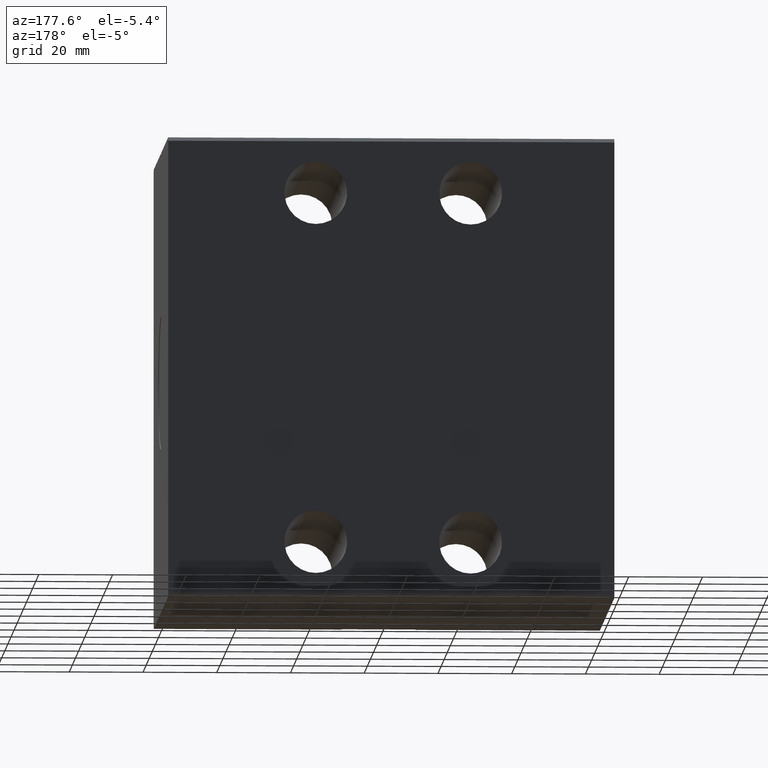
[diagram: clean part render]
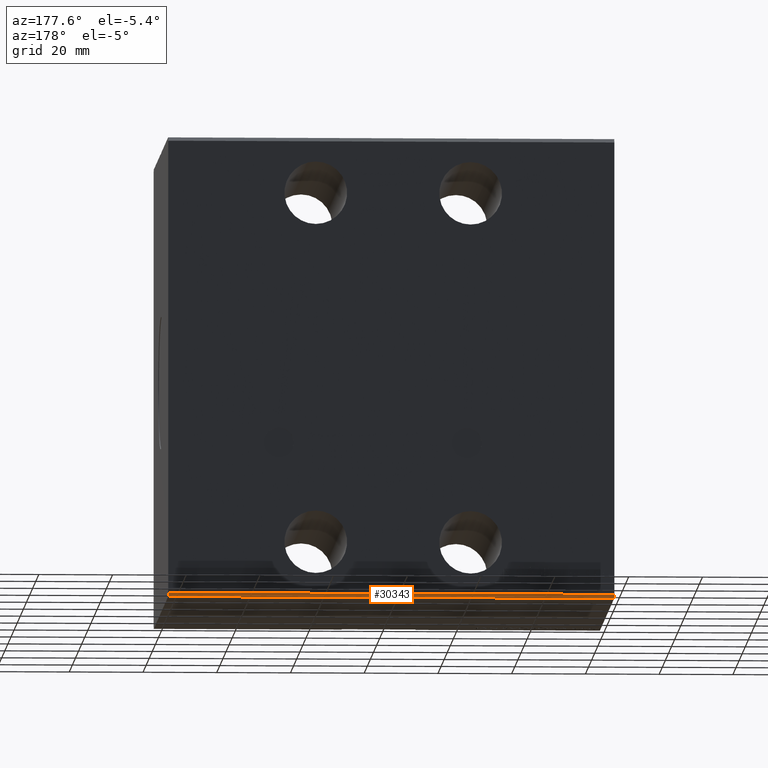
[diagram: same view with one face highlighted and labeled with its STEP entity id]
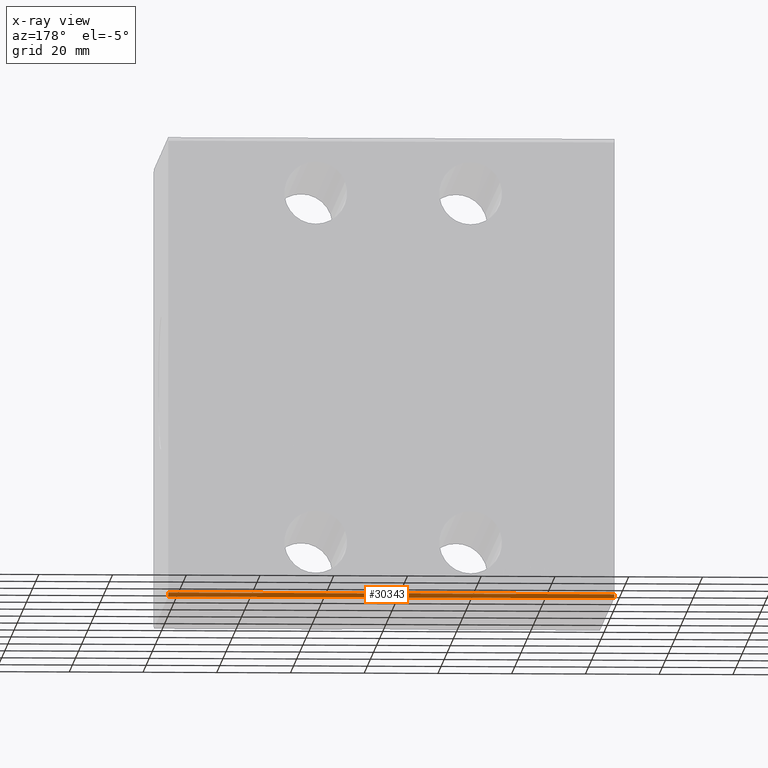
[diagram: x-ray of the same camera — body ghosted, the highlighted face saturated]
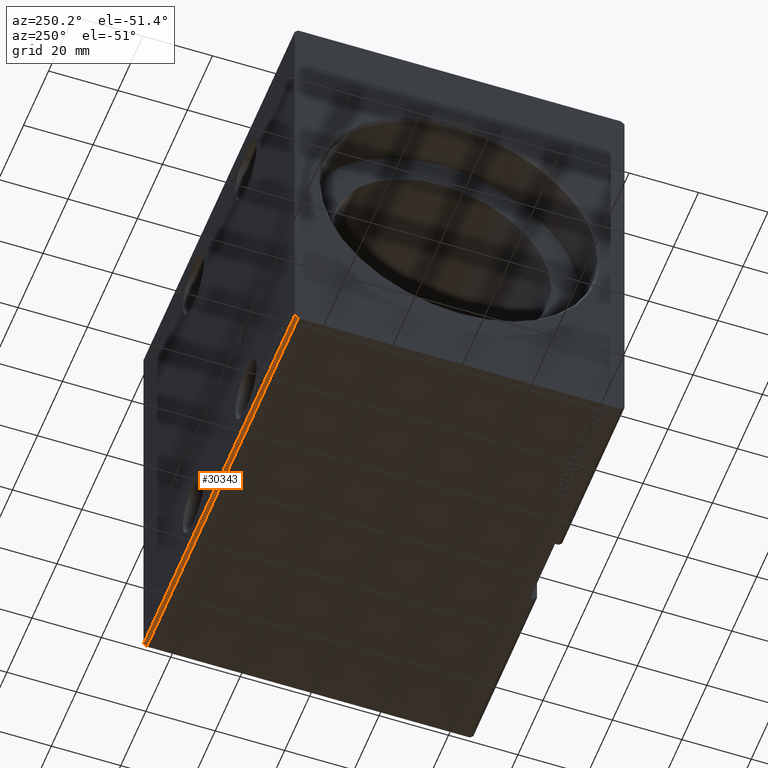
[diagram: same view with one face highlighted and labeled with its STEP entity id]
A machine part, auxiliary view. The second image highlights one B-rep face of the part: STEP entity #30343.
The next image is the same camera in x-ray: the body ghosted, the highlighted face saturated — about 0% of this face is hidden behind the body in this view.
A second angle (auxiliary view) of the same face is appended — the face is thin or edge-on in the first view.
In plain terms, the highlighted planar face has unit normal (0, -0.7071, 0.7071).
Its self-contained STEP definition (entity closure, byte-faithful):
#1283 = CARTESIAN_POINT ( 'NONE',  ( 121.0000000000000000, 47.50000000000001421, -61.50000000000001421 ) ) ;
#1706 = DIRECTION ( 'NONE',  ( 0.000000000000000000, 0.7071067811865574537, 0.7071067811865376918 ) ) ;
#1851 = EDGE_CURVE ( 'NONE', #39531, #21292, #5405, .T. ) ;
#2022 = LINE ( 'NONE', #34528, #27684 ) ;
#2207 = CARTESIAN_POINT ( 'NONE',  ( 0.000000000000000000, 46.50000000000000000, -62.50000000000000000 ) ) ;
#4252 = DIRECTION ( 'NONE',  ( 0.000000000000000000, -0.7071067811865378028, 0.7071067811865573427 ) ) ;
#5405 = LINE ( 'NONE', #2207, #7155 ) ;
#6827 = CARTESIAN_POINT ( 'NONE',  ( 121.0000000000000000, 46.50000000000000000, -62.50000000000000000 ) ) ;
#7155 = VECTOR ( 'NONE', #15183, 999.9999999999998863 ) ;
#10497 = ORIENTED_EDGE ( 'NONE', *, *, #33386, .F. ) ;
#10604 = VECTOR ( 'NONE', #1706, 999.9999999999998863 ) ;
#11709 = ORIENTED_EDGE ( 'NONE', *, *, #20913, .T. ) ;
#12242 = VECTOR ( 'NONE', #37224, 1000.000000000000000 ) ;
#15183 = DIRECTION ( 'NONE',  ( 0.000000000000000000, 0.7071067811865574537, 0.7071067811865376918 ) ) ;
#20913 = EDGE_CURVE ( 'NONE', #31778, #39531, #24253, .T. ) ;
#21292 = VERTEX_POINT ( 'NONE', #22711 ) ;
#22711 = CARTESIAN_POINT ( 'NONE',  ( 0.000000000000000000, 47.50000000000001421, -61.50000000000001421 ) ) ;
#23161 = DIRECTION ( 'NONE',  ( 0.000000000000000000, -0.7071067811865573427, -0.7071067811865378028 ) ) ;
#24253 = LINE ( 'NONE', #40193, #12242 ) ;
#24734 = EDGE_CURVE ( 'NONE', #33351, #21292, #2022, .T. ) ;
#26537 = CARTESIAN_POINT ( 'NONE',  ( 0.000000000000000000, 46.50000000000000000, -62.50000000000000000 ) ) ;
#27684 = VECTOR ( 'NONE', #31129, 1000.000000000000000 ) ;
#27806 = AXIS2_PLACEMENT_3D ( 'NONE', #6827, #4252, #23161 ) ;
#29335 = FACE_OUTER_BOUND ( 'NONE', #41978, .T. ) ;
#29647 = CARTESIAN_POINT ( 'NONE',  ( 121.0000000000000000, 46.50000000000000000, -62.50000000000000000 ) ) ;
#30343 = ADVANCED_FACE ( 'NONE', ( #29335 ), #33372, .F. ) ;
#31129 = DIRECTION ( 'NONE',  ( -1.000000000000000000, -0.000000000000000000, -0.000000000000000000 ) ) ;
#31348 = ORIENTED_EDGE ( 'NONE', *, *, #1851, .T. ) ;
#31361 = ORIENTED_EDGE ( 'NONE', *, *, #24734, .F. ) ;
#31778 = VERTEX_POINT ( 'NONE', #29647 ) ;
#33351 = VERTEX_POINT ( 'NONE', #1283 ) ;
#33372 = PLANE ( 'NONE',  #27806 ) ;
#33386 = EDGE_CURVE ( 'NONE', #31778, #33351, #40174, .T. ) ;
#34528 = CARTESIAN_POINT ( 'NONE',  ( 121.0000000000000000, 47.50000000000001421, -61.50000000000001421 ) ) ;
#36983 = CARTESIAN_POINT ( 'NONE',  ( 121.0000000000000000, 46.50000000000000000, -62.50000000000000000 ) ) ;
#37224 = DIRECTION ( 'NONE',  ( -1.000000000000000000, -0.000000000000000000, -0.000000000000000000 ) ) ;
#39531 = VERTEX_POINT ( 'NONE', #26537 ) ;
#40174 = LINE ( 'NONE', #36983, #10604 ) ;
#40193 = CARTESIAN_POINT ( 'NONE',  ( 121.0000000000000000, 46.50000000000000000, -62.50000000000000000 ) ) ;
#41978 = EDGE_LOOP ( 'NONE', ( #31348, #31361, #10497, #11709 ) ) ;